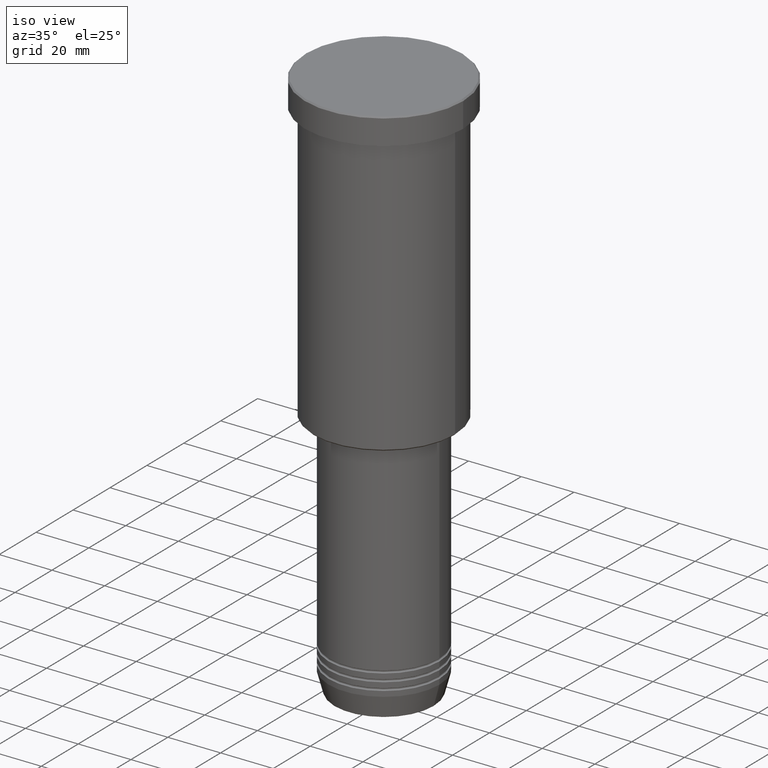
[diagram: clean part render]
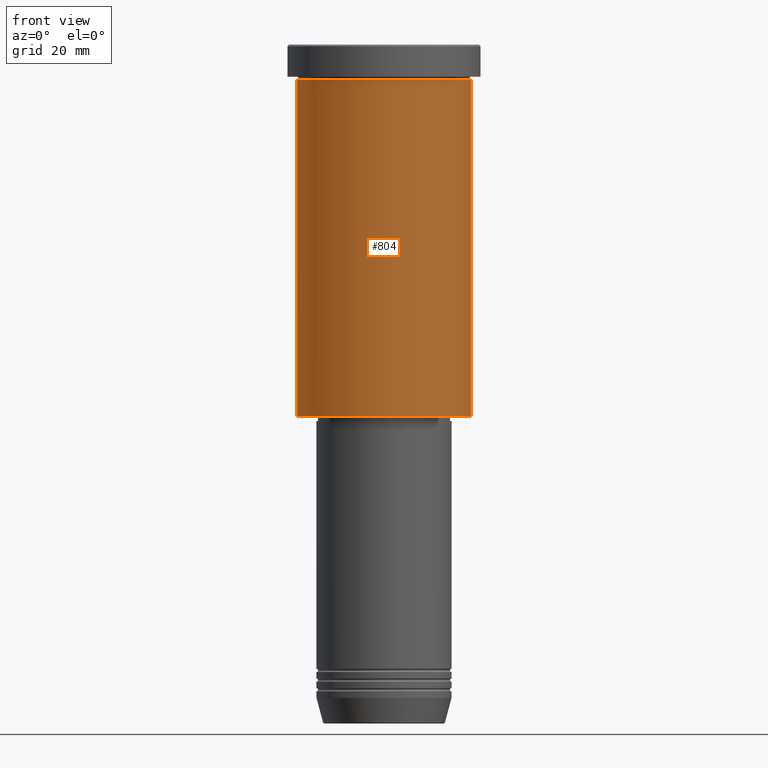
[diagram: tour spotlight — one face highlighted and labeled with its STEP entity id]
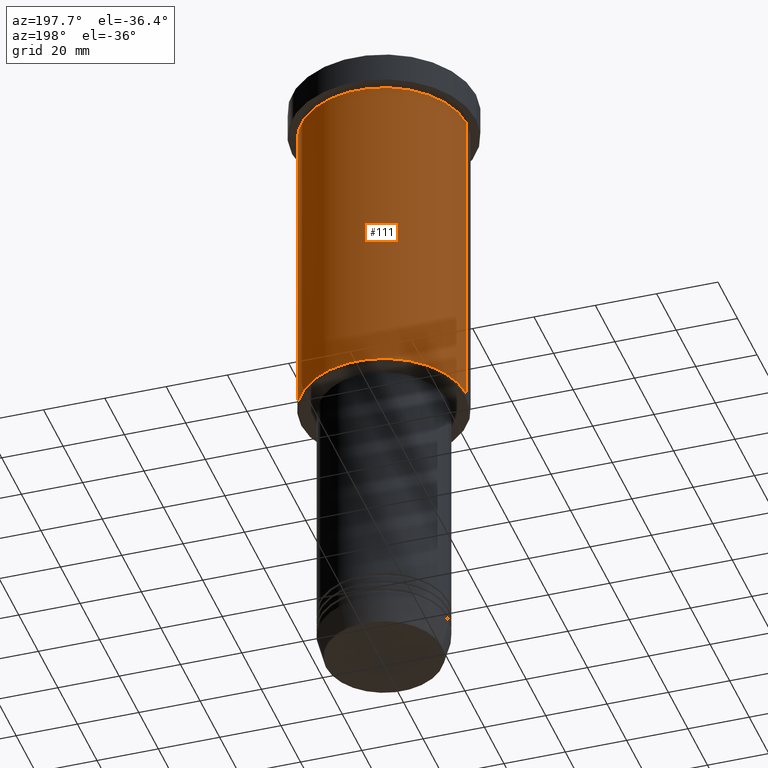
[diagram: tour spotlight — one face highlighted and labeled with its STEP entity id]
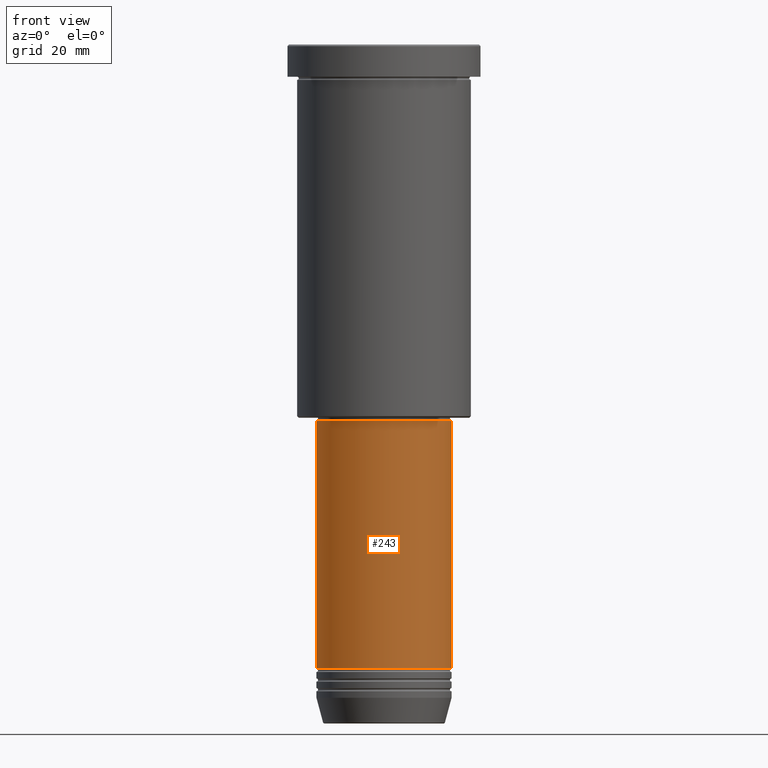
[diagram: tour spotlight — one face highlighted and labeled with its STEP entity id]
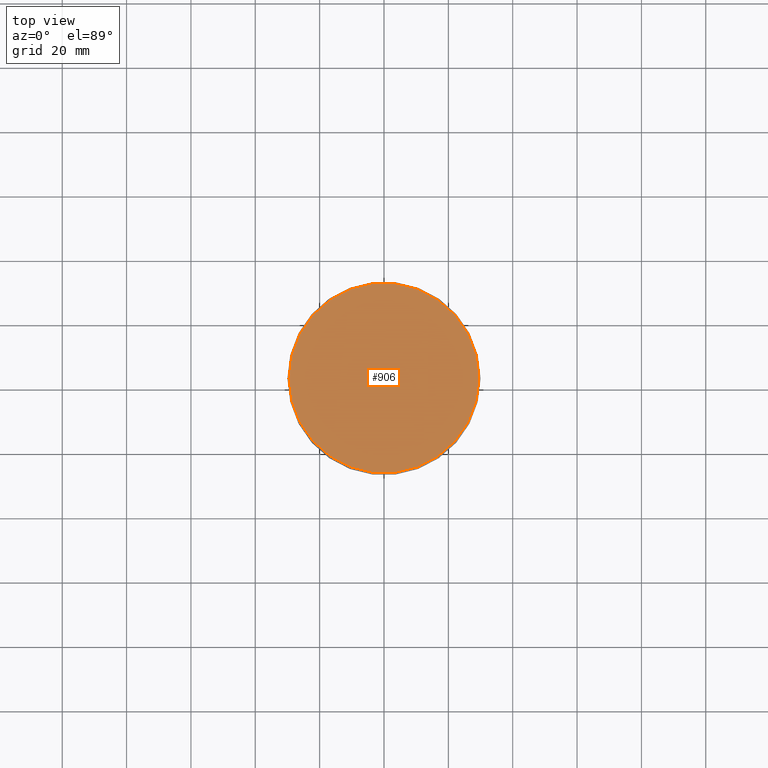
[diagram: tour spotlight — one face highlighted and labeled with its STEP entity id]
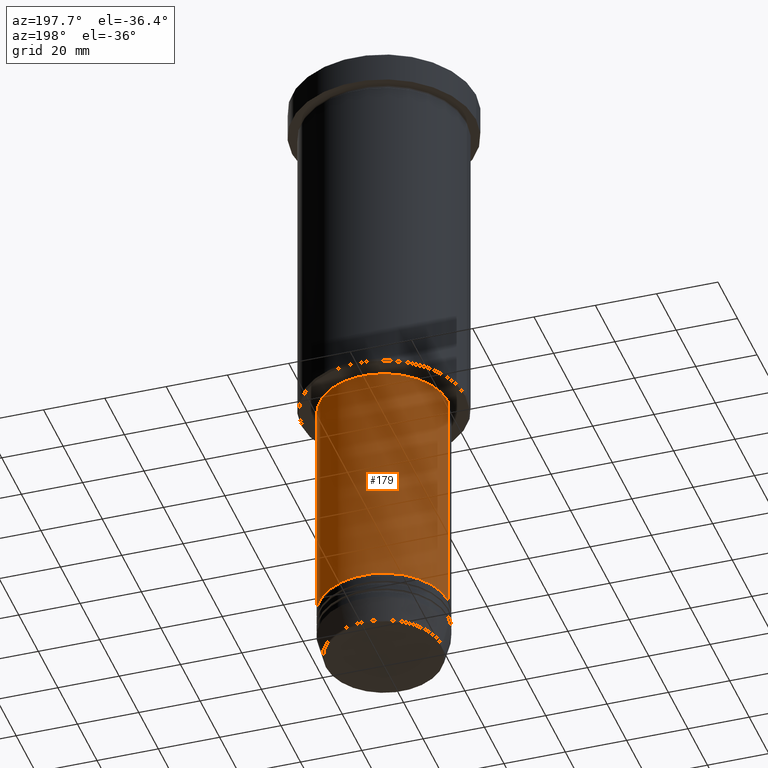
[diagram: tour spotlight — one face highlighted and labeled with its STEP entity id]
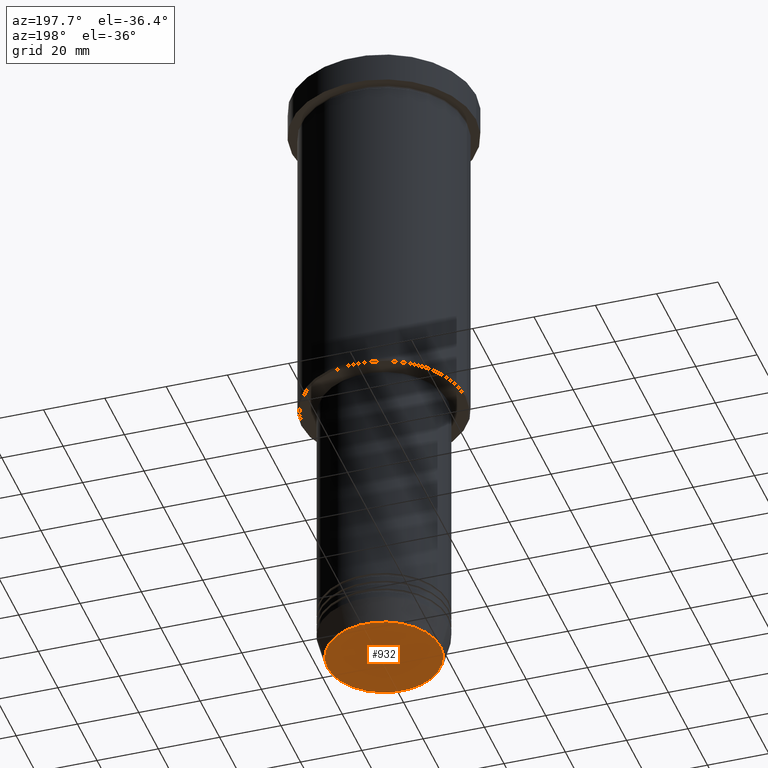
[diagram: tour spotlight — one face highlighted and labeled with its STEP entity id]
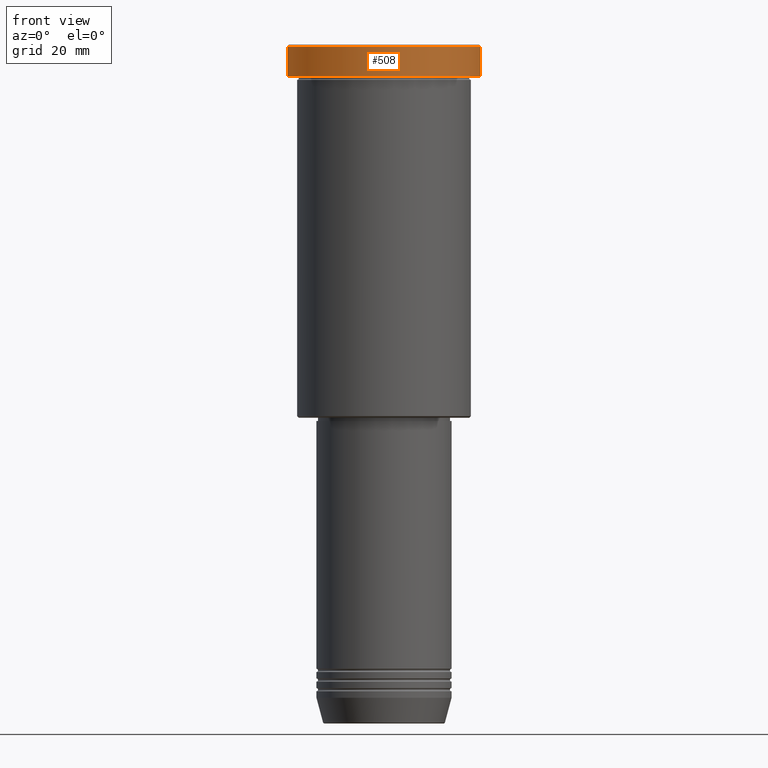
[diagram: tour spotlight — one face highlighted and labeled with its STEP entity id]
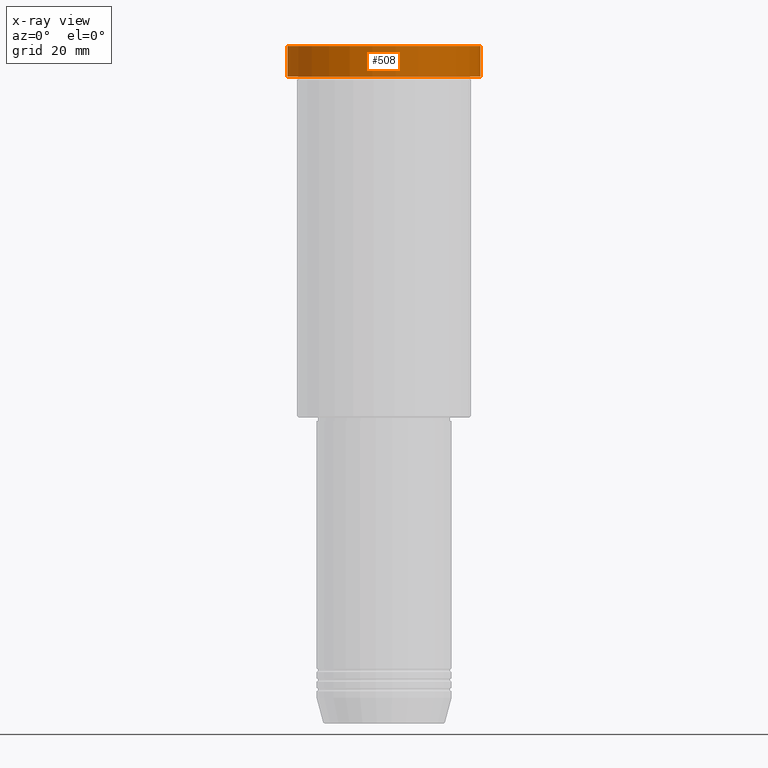
[diagram: x-ray of the same camera — body ghosted, this tour face saturated]
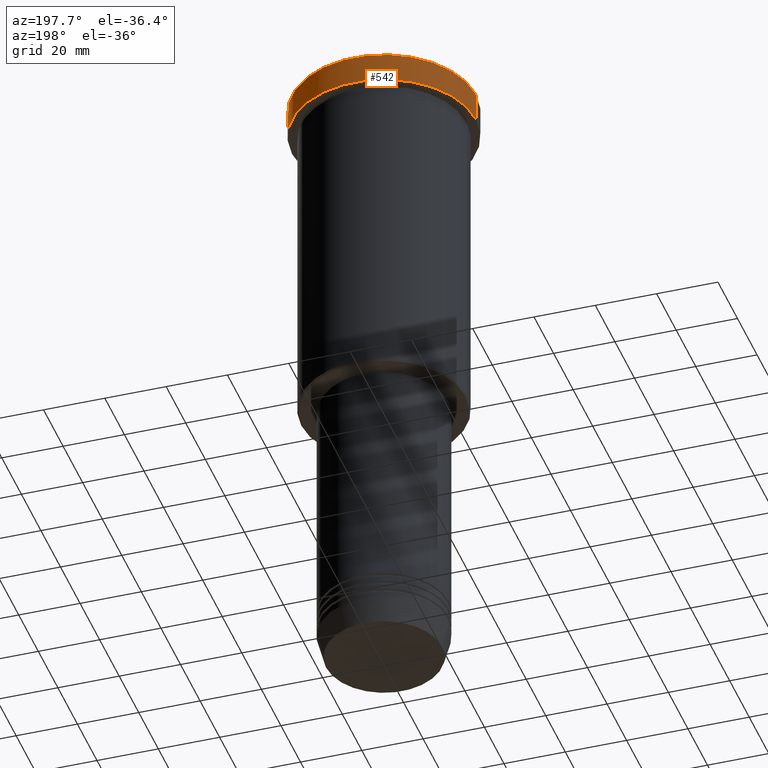
[diagram: tour spotlight — one face highlighted and labeled with its STEP entity id]
A machine part: a face-by-face anatomy tour. The part has 43 B-rep faces; the first image is the clean iso view, then the 8 largest visible faces are spotlighted one at a time (largest first), each with its STEP entity span.

Face 1 — front view, entity #804. In plain terms, the highlighted cylindrical surface (partial cylindrical patch) has radius 27 mm, axis along (-0, -0, 1).
Definition (entity closure, byte-faithful):
#3 = CIRCLE ( 'NONE', #815, 27.00000000000000355 ) ;
#48 = CARTESIAN_POINT ( 'NONE',  ( 27.00000000000000355, 0.000000000000000000, 0.000000000000000000 ) ) ;
#82 = DIRECTION ( 'NONE',  ( -0.000000000000000000, -0.000000000000000000, 1.000000000000000000 ) ) ;
#83 = AXIS2_PLACEMENT_3D ( 'NONE', #270, #82, #436 ) ;
#159 = ORIENTED_EDGE ( 'NONE', *, *, #1024, .T. ) ;
#170 = FACE_OUTER_BOUND ( 'NONE', #1068, .T. ) ;
#180 = DIRECTION ( 'NONE',  ( -0.000000000000000000, -0.000000000000000000, 1.000000000000000000 ) ) ;
#230 = EDGE_CURVE ( 'NONE', #1062, #689, #799, .T. ) ;
#270 = CARTESIAN_POINT ( 'NONE',  ( 0.000000000000000000, 0.000000000000000000, 0.000000000000000000 ) ) ;
#275 = CIRCLE ( 'NONE', #1174, 27.00000000000000355 ) ;
#291 = CARTESIAN_POINT ( 'NONE',  ( 0.000000000000000000, 0.000000000000000000, -115.4999999999999858 ) ) ;
#338 = CARTESIAN_POINT ( 'NONE',  ( 0.000000000000000000, 0.000000000000000000, -10.99999999999999289 ) ) ;
#342 = EDGE_CURVE ( 'NONE', #848, #689, #3, .T. ) ;
#367 = CARTESIAN_POINT ( 'NONE',  ( 27.00000000000000355, 0.000000000000000000, -10.99999999999999289 ) ) ;
#381 = CARTESIAN_POINT ( 'NONE',  ( -27.00000000000000355, 3.306546357697854128E-15, -10.99999999999999289 ) ) ;
#403 = DIRECTION ( 'NONE',  ( -0.000000000000000000, -0.000000000000000000, 1.000000000000000000 ) ) ;
#436 = DIRECTION ( 'NONE',  ( 1.000000000000000000, 0.000000000000000000, 0.000000000000000000 ) ) ;
#549 = ORIENTED_EDGE ( 'NONE', *, *, #1167, .F. ) ;
#638 = CARTESIAN_POINT ( 'NONE',  ( -27.00000000000000355, 3.306546357697854128E-15, -115.4999999999999858 ) ) ;
#680 = DIRECTION ( 'NONE',  ( -1.000000000000000000, 0.000000000000000000, 0.000000000000000000 ) ) ;
#689 = VERTEX_POINT ( 'NONE', #367 ) ;
#696 = VERTEX_POINT ( 'NONE', #638 ) ;
#780 = DIRECTION ( 'NONE',  ( -0.000000000000000000, -0.000000000000000000, 1.000000000000000000 ) ) ;
#799 = LINE ( 'NONE', #48, #835 ) ;
#804 = ADVANCED_FACE ( 'NONE', ( #170 ), #1085, .T. ) ;
#815 = AXIS2_PLACEMENT_3D ( 'NONE', #338, #180, #1094 ) ;
#835 = VECTOR ( 'NONE', #403, 1000.000000000000000 ) ;
#848 = VERTEX_POINT ( 'NONE', #381 ) ;
#853 = CARTESIAN_POINT ( 'NONE',  ( 27.00000000000000355, 0.000000000000000000, -115.4999999999999858 ) ) ;
#878 = CARTESIAN_POINT ( 'NONE',  ( -27.00000000000000355, 3.306546357697854128E-15, 0.000000000000000000 ) ) ;
#901 = LINE ( 'NONE', #878, #902 ) ;
#902 = VECTOR ( 'NONE', #961, 1000.000000000000000 ) ;
#929 = ORIENTED_EDGE ( 'NONE', *, *, #230, .T. ) ;
#961 = DIRECTION ( 'NONE',  ( -0.000000000000000000, -0.000000000000000000, 1.000000000000000000 ) ) ;
#1024 = EDGE_CURVE ( 'NONE', #696, #1062, #275, .T. ) ;
#1062 = VERTEX_POINT ( 'NONE', #853 ) ;
#1068 = EDGE_LOOP ( 'NONE', ( #549, #159, #929, #1148 ) ) ;
#1085 = CYLINDRICAL_SURFACE ( 'NONE', #83, 27.00000000000000355 ) ;
#1094 = DIRECTION ( 'NONE',  ( 1.000000000000000000, 0.000000000000000000, 0.000000000000000000 ) ) ;
#1148 = ORIENTED_EDGE ( 'NONE', *, *, #342, .F. ) ;
#1167 = EDGE_CURVE ( 'NONE', #696, #848, #901, .T. ) ;
#1174 = AXIS2_PLACEMENT_3D ( 'NONE', #291, #780, #680 ) ;

Face 2 — auxiliary view, entity #111. In plain terms, the highlighted cylindrical surface (partial cylindrical patch) has radius 27 mm, axis along (-0, -0, 1).
Definition (entity closure, byte-faithful):
#28 = ORIENTED_EDGE ( 'NONE', *, *, #824, .T. ) ;
#48 = CARTESIAN_POINT ( 'NONE',  ( 27.00000000000000355, 0.000000000000000000, 0.000000000000000000 ) ) ;
#88 = DIRECTION ( 'NONE',  ( 1.000000000000000000, 0.000000000000000000, 0.000000000000000000 ) ) ;
#111 = ADVANCED_FACE ( 'NONE', ( #386 ), #202, .T. ) ;
#117 = DIRECTION ( 'NONE',  ( -0.000000000000000000, -0.000000000000000000, 1.000000000000000000 ) ) ;
#167 = ORIENTED_EDGE ( 'NONE', *, *, #1167, .T. ) ;
#202 = CYLINDRICAL_SURFACE ( 'NONE', #223, 27.00000000000000355 ) ;
#223 = AXIS2_PLACEMENT_3D ( 'NONE', #928, #117, #1119 ) ;
#229 = AXIS2_PLACEMENT_3D ( 'NONE', #553, #920, #1175 ) ;
#230 = EDGE_CURVE ( 'NONE', #1062, #689, #799, .T. ) ;
#277 = EDGE_CURVE ( 'NONE', #689, #848, #305, .T. ) ;
#305 = CIRCLE ( 'NONE', #450, 27.00000000000000355 ) ;
#367 = CARTESIAN_POINT ( 'NONE',  ( 27.00000000000000355, 0.000000000000000000, -10.99999999999999289 ) ) ;
#381 = CARTESIAN_POINT ( 'NONE',  ( -27.00000000000000355, 3.306546357697854128E-15, -10.99999999999999289 ) ) ;
#386 = FACE_OUTER_BOUND ( 'NONE', #887, .T. ) ;
#403 = DIRECTION ( 'NONE',  ( -0.000000000000000000, -0.000000000000000000, 1.000000000000000000 ) ) ;
#450 = AXIS2_PLACEMENT_3D ( 'NONE', #1152, #536, #88 ) ;
#520 = ORIENTED_EDGE ( 'NONE', *, *, #230, .F. ) ;
#536 = DIRECTION ( 'NONE',  ( -0.000000000000000000, -0.000000000000000000, 1.000000000000000000 ) ) ;
#553 = CARTESIAN_POINT ( 'NONE',  ( 0.000000000000000000, 0.000000000000000000, -115.4999999999999858 ) ) ;
#588 = CIRCLE ( 'NONE', #229, 27.00000000000000355 ) ;
#638 = CARTESIAN_POINT ( 'NONE',  ( -27.00000000000000355, 3.306546357697854128E-15, -115.4999999999999858 ) ) ;
#689 = VERTEX_POINT ( 'NONE', #367 ) ;
#696 = VERTEX_POINT ( 'NONE', #638 ) ;
#799 = LINE ( 'NONE', #48, #835 ) ;
#824 = EDGE_CURVE ( 'NONE', #1062, #696, #588, .T. ) ;
#835 = VECTOR ( 'NONE', #403, 1000.000000000000000 ) ;
#848 = VERTEX_POINT ( 'NONE', #381 ) ;
#853 = CARTESIAN_POINT ( 'NONE',  ( 27.00000000000000355, 0.000000000000000000, -115.4999999999999858 ) ) ;
#878 = CARTESIAN_POINT ( 'NONE',  ( -27.00000000000000355, 3.306546357697854128E-15, 0.000000000000000000 ) ) ;
#887 = EDGE_LOOP ( 'NONE', ( #28, #167, #1173, #520 ) ) ;
#901 = LINE ( 'NONE', #878, #902 ) ;
#902 = VECTOR ( 'NONE', #961, 1000.000000000000000 ) ;
#920 = DIRECTION ( 'NONE',  ( -0.000000000000000000, -0.000000000000000000, 1.000000000000000000 ) ) ;
#928 = CARTESIAN_POINT ( 'NONE',  ( 0.000000000000000000, 0.000000000000000000, 0.000000000000000000 ) ) ;
#961 = DIRECTION ( 'NONE',  ( -0.000000000000000000, -0.000000000000000000, 1.000000000000000000 ) ) ;
#1062 = VERTEX_POINT ( 'NONE', #853 ) ;
#1119 = DIRECTION ( 'NONE',  ( 1.000000000000000000, 0.000000000000000000, 0.000000000000000000 ) ) ;
#1152 = CARTESIAN_POINT ( 'NONE',  ( 0.000000000000000000, 0.000000000000000000, -10.99999999999999289 ) ) ;
#1167 = EDGE_CURVE ( 'NONE', #696, #848, #901, .T. ) ;
#1173 = ORIENTED_EDGE ( 'NONE', *, *, #277, .F. ) ;
#1175 = DIRECTION ( 'NONE',  ( -1.000000000000000000, 0.000000000000000000, 0.000000000000000000 ) ) ;

Face 3 — front view, entity #243. In plain terms, the highlighted cylindrical surface (partial cylindrical patch) has radius 21 mm, axis along (-0, -0, 1).
Definition (entity closure, byte-faithful):
#4 = AXIS2_PLACEMENT_3D ( 'NONE', #96, #1073, #448 ) ;
#14 = EDGE_CURVE ( 'NONE', #587, #983, #319, .T. ) ;
#96 = CARTESIAN_POINT ( 'NONE',  ( 0.000000000000000000, 0.000000000000000000, -117.0000000000000142 ) ) ;
#101 = VERTEX_POINT ( 'NONE', #652 ) ;
#131 = VECTOR ( 'NONE', #732, 1000.000000000000000 ) ;
#162 = ORIENTED_EDGE ( 'NONE', *, *, #761, .F. ) ;
#169 = CARTESIAN_POINT ( 'NONE',  ( 21.00000000000000000, 0.000000000000000000, -193.9999999999999716 ) ) ;
#192 = EDGE_CURVE ( 'NONE', #877, #101, #602, .T. ) ;
#233 = DIRECTION ( 'NONE',  ( 1.000000000000000000, 0.000000000000000000, 0.000000000000000000 ) ) ;
#243 = ADVANCED_FACE ( 'NONE', ( #370 ), #681, .T. ) ;
#318 = CARTESIAN_POINT ( 'NONE',  ( -21.00000000000000000, 2.571758278209441661E-15, -117.0000000000000142 ) ) ;
#319 = LINE ( 'NONE', #514, #685 ) ;
#322 = CARTESIAN_POINT ( 'NONE',  ( 21.00000000000000000, 0.000000000000000000, 0.000000000000000000 ) ) ;
#328 = ORIENTED_EDGE ( 'NONE', *, *, #530, .T. ) ;
#370 = FACE_OUTER_BOUND ( 'NONE', #854, .T. ) ;
#398 = ORIENTED_EDGE ( 'NONE', *, *, #192, .T. ) ;
#419 = CIRCLE ( 'NONE', #690, 21.00000000000000000 ) ;
#448 = DIRECTION ( 'NONE',  ( 1.000000000000000000, 0.000000000000000000, 0.000000000000000000 ) ) ;
#451 = CIRCLE ( 'NONE', #4, 21.00000000000000000 ) ;
#476 = CARTESIAN_POINT ( 'NONE',  ( -21.00000000000000000, 2.571758278209441661E-15, -193.9999999999999716 ) ) ;
#514 = CARTESIAN_POINT ( 'NONE',  ( -21.00000000000000000, 2.571758278209441661E-15, 0.000000000000000000 ) ) ;
#530 = EDGE_CURVE ( 'NONE', #587, #877, #419, .T. ) ;
#587 = VERTEX_POINT ( 'NONE', #476 ) ;
#602 = LINE ( 'NONE', #322, #131 ) ;
#611 = AXIS2_PLACEMENT_3D ( 'NONE', #781, #1053, #233 ) ;
#652 = CARTESIAN_POINT ( 'NONE',  ( 21.00000000000000000, 0.000000000000000000, -117.0000000000000142 ) ) ;
#681 = CYLINDRICAL_SURFACE ( 'NONE', #611, 21.00000000000000000 ) ;
#682 = ORIENTED_EDGE ( 'NONE', *, *, #14, .F. ) ;
#685 = VECTOR ( 'NONE', #980, 1000.000000000000000 ) ;
#690 = AXIS2_PLACEMENT_3D ( 'NONE', #755, #1112, #861 ) ;
#732 = DIRECTION ( 'NONE',  ( -0.000000000000000000, -0.000000000000000000, 1.000000000000000000 ) ) ;
#755 = CARTESIAN_POINT ( 'NONE',  ( 0.000000000000000000, 0.000000000000000000, -193.9999999999999716 ) ) ;
#761 = EDGE_CURVE ( 'NONE', #983, #101, #451, .T. ) ;
#781 = CARTESIAN_POINT ( 'NONE',  ( 0.000000000000000000, 0.000000000000000000, 0.000000000000000000 ) ) ;
#854 = EDGE_LOOP ( 'NONE', ( #682, #328, #398, #162 ) ) ;
#861 = DIRECTION ( 'NONE',  ( 1.000000000000000000, 0.000000000000000000, 0.000000000000000000 ) ) ;
#877 = VERTEX_POINT ( 'NONE', #169 ) ;
#980 = DIRECTION ( 'NONE',  ( -0.000000000000000000, -0.000000000000000000, 1.000000000000000000 ) ) ;
#983 = VERTEX_POINT ( 'NONE', #318 ) ;
#1053 = DIRECTION ( 'NONE',  ( -0.000000000000000000, -0.000000000000000000, 1.000000000000000000 ) ) ;
#1073 = DIRECTION ( 'NONE',  ( -0.000000000000000000, -0.000000000000000000, 1.000000000000000000 ) ) ;
#1112 = DIRECTION ( 'NONE',  ( -0.000000000000000000, -0.000000000000000000, 1.000000000000000000 ) ) ;

Face 4 — top view, entity #906. In plain terms, the highlighted planar face has unit normal (0, -0, 1).
Definition (entity closure, byte-faithful):
#7 = ORIENTED_EDGE ( 'NONE', *, *, #510, .T. ) ;
#269 = FACE_OUTER_BOUND ( 'NONE', #1182, .T. ) ;
#292 = VERTEX_POINT ( 'NONE', #600 ) ;
#312 = DIRECTION ( 'NONE',  ( 0.000000000000000000, -0.000000000000000000, 1.000000000000000000 ) ) ;
#390 = DIRECTION ( 'NONE',  ( -0.000000000000000000, -0.000000000000000000, 1.000000000000000000 ) ) ;
#446 = CARTESIAN_POINT ( 'NONE',  ( 0.000000000000000000, 0.000000000000000000, 0.000000000000000000 ) ) ;
#477 = CARTESIAN_POINT ( 'NONE',  ( 0.000000000000000000, 0.000000000000000000, 0.000000000000000000 ) ) ;
#510 = EDGE_CURVE ( 'NONE', #292, #754, #933, .T. ) ;
#543 = CARTESIAN_POINT ( 'NONE',  ( -29.50000000000005329, 0.000000000000000000, 0.000000000000000000 ) ) ;
#568 = AXIS2_PLACEMENT_3D ( 'NONE', #582, #390, #778 ) ;
#582 = CARTESIAN_POINT ( 'NONE',  ( 0.000000000000000000, 0.000000000000000000, 0.000000000000000000 ) ) ;
#600 = CARTESIAN_POINT ( 'NONE',  ( 29.50000000000005329, 3.643324227463378546E-15, 0.000000000000000000 ) ) ;
#628 = PLANE ( 'NONE',  #1012 ) ;
#671 = DIRECTION ( 'NONE',  ( 1.000000000000000000, 0.000000000000000000, 0.000000000000000000 ) ) ;
#752 = CIRCLE ( 'NONE', #952, 29.50000000000005329 ) ;
#754 = VERTEX_POINT ( 'NONE', #543 ) ;
#759 = DIRECTION ( 'NONE',  ( 1.000000000000000000, 0.000000000000000000, 0.000000000000000000 ) ) ;
#778 = DIRECTION ( 'NONE',  ( 1.000000000000000000, 0.000000000000000000, 0.000000000000000000 ) ) ;
#810 = ORIENTED_EDGE ( 'NONE', *, *, #926, .T. ) ;
#860 = DIRECTION ( 'NONE',  ( -0.000000000000000000, -0.000000000000000000, 1.000000000000000000 ) ) ;
#906 = ADVANCED_FACE ( 'NONE', ( #269 ), #628, .T. ) ;
#926 = EDGE_CURVE ( 'NONE', #754, #292, #752, .T. ) ;
#933 = CIRCLE ( 'NONE', #568, 29.50000000000005329 ) ;
#952 = AXIS2_PLACEMENT_3D ( 'NONE', #477, #860, #671 ) ;
#1012 = AXIS2_PLACEMENT_3D ( 'NONE', #446, #312, #759 ) ;
#1182 = EDGE_LOOP ( 'NONE', ( #810, #7 ) ) ;

Face 5 — auxiliary view, entity #179. In plain terms, the highlighted cylindrical surface (partial cylindrical patch) has radius 21 mm, axis along (-0, -0, 1).
Definition (entity closure, byte-faithful):
#14 = EDGE_CURVE ( 'NONE', #587, #983, #319, .T. ) ;
#37 = DIRECTION ( 'NONE',  ( 1.000000000000000000, 0.000000000000000000, 0.000000000000000000 ) ) ;
#101 = VERTEX_POINT ( 'NONE', #652 ) ;
#131 = VECTOR ( 'NONE', #732, 1000.000000000000000 ) ;
#135 = FACE_OUTER_BOUND ( 'NONE', #416, .T. ) ;
#169 = CARTESIAN_POINT ( 'NONE',  ( 21.00000000000000000, 0.000000000000000000, -193.9999999999999716 ) ) ;
#176 = AXIS2_PLACEMENT_3D ( 'NONE', #663, #707, #1157 ) ;
#179 = ADVANCED_FACE ( 'NONE', ( #135 ), #785, .T. ) ;
#192 = EDGE_CURVE ( 'NONE', #877, #101, #602, .T. ) ;
#264 = ORIENTED_EDGE ( 'NONE', *, *, #192, .F. ) ;
#316 = DIRECTION ( 'NONE',  ( 1.000000000000000000, 0.000000000000000000, 0.000000000000000000 ) ) ;
#318 = CARTESIAN_POINT ( 'NONE',  ( -21.00000000000000000, 2.571758278209441661E-15, -117.0000000000000142 ) ) ;
#319 = LINE ( 'NONE', #514, #685 ) ;
#322 = CARTESIAN_POINT ( 'NONE',  ( 21.00000000000000000, 0.000000000000000000, 0.000000000000000000 ) ) ;
#341 = DIRECTION ( 'NONE',  ( -0.000000000000000000, -0.000000000000000000, 1.000000000000000000 ) ) ;
#355 = AXIS2_PLACEMENT_3D ( 'NONE', #1000, #341, #316 ) ;
#375 = EDGE_CURVE ( 'NONE', #101, #983, #382, .T. ) ;
#382 = CIRCLE ( 'NONE', #176, 21.00000000000000000 ) ;
#405 = DIRECTION ( 'NONE',  ( -0.000000000000000000, -0.000000000000000000, 1.000000000000000000 ) ) ;
#416 = EDGE_LOOP ( 'NONE', ( #526, #1139, #610, #264 ) ) ;
#476 = CARTESIAN_POINT ( 'NONE',  ( -21.00000000000000000, 2.571758278209441661E-15, -193.9999999999999716 ) ) ;
#514 = CARTESIAN_POINT ( 'NONE',  ( -21.00000000000000000, 2.571758278209441661E-15, 0.000000000000000000 ) ) ;
#526 = ORIENTED_EDGE ( 'NONE', *, *, #1079, .T. ) ;
#587 = VERTEX_POINT ( 'NONE', #476 ) ;
#602 = LINE ( 'NONE', #322, #131 ) ;
#610 = ORIENTED_EDGE ( 'NONE', *, *, #375, .F. ) ;
#616 = CIRCLE ( 'NONE', #740, 21.00000000000000000 ) ;
#652 = CARTESIAN_POINT ( 'NONE',  ( 21.00000000000000000, 0.000000000000000000, -117.0000000000000142 ) ) ;
#663 = CARTESIAN_POINT ( 'NONE',  ( 0.000000000000000000, 0.000000000000000000, -117.0000000000000142 ) ) ;
#685 = VECTOR ( 'NONE', #980, 1000.000000000000000 ) ;
#707 = DIRECTION ( 'NONE',  ( -0.000000000000000000, -0.000000000000000000, 1.000000000000000000 ) ) ;
#732 = DIRECTION ( 'NONE',  ( -0.000000000000000000, -0.000000000000000000, 1.000000000000000000 ) ) ;
#740 = AXIS2_PLACEMENT_3D ( 'NONE', #864, #405, #37 ) ;
#785 = CYLINDRICAL_SURFACE ( 'NONE', #355, 21.00000000000000000 ) ;
#864 = CARTESIAN_POINT ( 'NONE',  ( 0.000000000000000000, 0.000000000000000000, -193.9999999999999716 ) ) ;
#877 = VERTEX_POINT ( 'NONE', #169 ) ;
#980 = DIRECTION ( 'NONE',  ( -0.000000000000000000, -0.000000000000000000, 1.000000000000000000 ) ) ;
#983 = VERTEX_POINT ( 'NONE', #318 ) ;
#1000 = CARTESIAN_POINT ( 'NONE',  ( 0.000000000000000000, 0.000000000000000000, 0.000000000000000000 ) ) ;
#1079 = EDGE_CURVE ( 'NONE', #877, #587, #616, .T. ) ;
#1139 = ORIENTED_EDGE ( 'NONE', *, *, #14, .T. ) ;
#1157 = DIRECTION ( 'NONE',  ( 1.000000000000000000, 0.000000000000000000, 0.000000000000000000 ) ) ;

Face 6 — auxiliary view, entity #932. In plain terms, the highlighted planar face has unit normal (0, -0, 1).
Definition (entity closure, byte-faithful):
#15 = DIRECTION ( 'NONE',  ( 0.000000000000000000, 0.000000000000000000, -1.000000000000000000 ) ) ;
#112 = CARTESIAN_POINT ( 'NONE',  ( 0.000000000000000000, 0.000000000000000000, -211.0000000000000284 ) ) ;
#130 = DIRECTION ( 'NONE',  ( 0.000000000000000000, -0.000000000000000000, 1.000000000000000000 ) ) ;
#164 = CARTESIAN_POINT ( 'NONE',  ( 18.47274296656153680, 0.000000000000000000, -211.0000000000000284 ) ) ;
#171 = DIRECTION ( 'NONE',  ( 1.000000000000000000, 0.000000000000000000, 0.000000000000000000 ) ) ;
#266 = CARTESIAN_POINT ( 'NONE',  ( 0.000000000000000000, 0.000000000000000000, -211.0000000000000284 ) ) ;
#267 = ORIENTED_EDGE ( 'NONE', *, *, #825, .T. ) ;
#308 = CIRCLE ( 'NONE', #951, 18.47274296656153680 ) ;
#371 = EDGE_LOOP ( 'NONE', ( #1023, #267 ) ) ;
#374 = DIRECTION ( 'NONE',  ( 0.000000000000000000, 0.000000000000000000, -1.000000000000000000 ) ) ;
#462 = VERTEX_POINT ( 'NONE', #777 ) ;
#471 = AXIS2_PLACEMENT_3D ( 'NONE', #112, #130, #579 ) ;
#483 = FACE_OUTER_BOUND ( 'NONE', #371, .T. ) ;
#535 = AXIS2_PLACEMENT_3D ( 'NONE', #845, #15, #779 ) ;
#562 = PLANE ( 'NONE',  #471 ) ;
#579 = DIRECTION ( 'NONE',  ( 1.000000000000000000, 0.000000000000000000, 0.000000000000000000 ) ) ;
#709 = EDGE_CURVE ( 'NONE', #893, #462, #308, .T. ) ;
#777 = CARTESIAN_POINT ( 'NONE',  ( -18.47274296656153680, 2.291831503831603257E-15, -211.0000000000000284 ) ) ;
#779 = DIRECTION ( 'NONE',  ( 1.000000000000000000, 0.000000000000000000, 0.000000000000000000 ) ) ;
#825 = EDGE_CURVE ( 'NONE', #462, #893, #904, .T. ) ;
#845 = CARTESIAN_POINT ( 'NONE',  ( 0.000000000000000000, 0.000000000000000000, -211.0000000000000284 ) ) ;
#893 = VERTEX_POINT ( 'NONE', #164 ) ;
#904 = CIRCLE ( 'NONE', #535, 18.47274296656153680 ) ;
#932 = ADVANCED_FACE ( 'NONE', ( #483 ), #562, .F. ) ;
#951 = AXIS2_PLACEMENT_3D ( 'NONE', #266, #374, #171 ) ;
#1023 = ORIENTED_EDGE ( 'NONE', *, *, #709, .T. ) ;

Face 7 — front view, entity #508. An x-ray twin of the same camera follows (body ghosted, this face saturated) — the face is partly hidden behind the body. In plain terms, the highlighted cylindrical surface (partial cylindrical patch) has radius 30 mm, axis along (-0, -0, 1).
Definition (entity closure, byte-faithful):
#44 = CARTESIAN_POINT ( 'NONE',  ( 0.000000000000000000, 0.000000000000000000, 0.000000000000000000 ) ) ;
#49 = DIRECTION ( 'NONE',  ( 1.000000000000000000, 0.000000000000000000, 0.000000000000000000 ) ) ;
#59 = CARTESIAN_POINT ( 'NONE',  ( 30.00000000000000000, 0.000000000000000000, -9.999999999999992895 ) ) ;
#67 = EDGE_CURVE ( 'NONE', #891, #648, #992, .T. ) ;
#138 = CYLINDRICAL_SURFACE ( 'NONE', #417, 30.00000000000000000 ) ;
#218 = FACE_OUTER_BOUND ( 'NONE', #512, .T. ) ;
#257 = VERTEX_POINT ( 'NONE', #59 ) ;
#353 = ORIENTED_EDGE ( 'NONE', *, *, #618, .F. ) ;
#401 = EDGE_CURVE ( 'NONE', #257, #891, #1057, .T. ) ;
#409 = CARTESIAN_POINT ( 'NONE',  ( 30.00000000000000000, 0.000000000000000000, -0.4999999999999518718 ) ) ;
#417 = AXIS2_PLACEMENT_3D ( 'NONE', #44, #1025, #863 ) ;
#456 = DIRECTION ( 'NONE',  ( -0.000000000000000000, -0.000000000000000000, 1.000000000000000000 ) ) ;
#461 = LINE ( 'NONE', #746, #837 ) ;
#464 = ORIENTED_EDGE ( 'NONE', *, *, #401, .T. ) ;
#465 = EDGE_CURVE ( 'NONE', #1080, #257, #976, .T. ) ;
#508 = ADVANCED_FACE ( 'NONE', ( #218 ), #138, .T. ) ;
#512 = EDGE_LOOP ( 'NONE', ( #353, #1086, #464, #786 ) ) ;
#513 = CARTESIAN_POINT ( 'NONE',  ( 0.000000000000000000, 0.000000000000000000, -9.999999999999992895 ) ) ;
#547 = DIRECTION ( 'NONE',  ( 1.000000000000000000, 0.000000000000000000, 0.000000000000000000 ) ) ;
#585 = AXIS2_PLACEMENT_3D ( 'NONE', #513, #871, #49 ) ;
#618 = EDGE_CURVE ( 'NONE', #1080, #648, #461, .T. ) ;
#639 = DIRECTION ( 'NONE',  ( 0.000000000000000000, 0.000000000000000000, -1.000000000000000000 ) ) ;
#648 = VERTEX_POINT ( 'NONE', #922 ) ;
#694 = CARTESIAN_POINT ( 'NONE',  ( 30.00000000000000000, 0.000000000000000000, 0.000000000000000000 ) ) ;
#700 = DIRECTION ( 'NONE',  ( -0.000000000000000000, -0.000000000000000000, 1.000000000000000000 ) ) ;
#737 = AXIS2_PLACEMENT_3D ( 'NONE', #913, #639, #547 ) ;
#746 = CARTESIAN_POINT ( 'NONE',  ( -30.00000000000000000, 3.673940397442059178E-15, 0.000000000000000000 ) ) ;
#786 = ORIENTED_EDGE ( 'NONE', *, *, #67, .T. ) ;
#837 = VECTOR ( 'NONE', #456, 1000.000000000000000 ) ;
#863 = DIRECTION ( 'NONE',  ( 1.000000000000000000, 0.000000000000000000, 0.000000000000000000 ) ) ;
#871 = DIRECTION ( 'NONE',  ( -0.000000000000000000, -0.000000000000000000, 1.000000000000000000 ) ) ;
#891 = VERTEX_POINT ( 'NONE', #409 ) ;
#913 = CARTESIAN_POINT ( 'NONE',  ( 0.000000000000000000, 0.000000000000000000, -0.4999999999999518718 ) ) ;
#922 = CARTESIAN_POINT ( 'NONE',  ( -30.00000000000000000, 3.673940397442059178E-15, -0.4999999999999518718 ) ) ;
#976 = CIRCLE ( 'NONE', #585, 30.00000000000000000 ) ;
#992 = CIRCLE ( 'NONE', #737, 30.00000000000000000 ) ;
#1010 = VECTOR ( 'NONE', #700, 1000.000000000000000 ) ;
#1025 = DIRECTION ( 'NONE',  ( -0.000000000000000000, -0.000000000000000000, 1.000000000000000000 ) ) ;
#1043 = CARTESIAN_POINT ( 'NONE',  ( -30.00000000000000000, 3.673940397442059178E-15, -9.999999999999992895 ) ) ;
#1057 = LINE ( 'NONE', #694, #1010 ) ;
#1080 = VERTEX_POINT ( 'NONE', #1043 ) ;
#1086 = ORIENTED_EDGE ( 'NONE', *, *, #465, .T. ) ;

Face 8 — auxiliary view, entity #542. In plain terms, the highlighted cylindrical surface (partial cylindrical patch) has radius 30 mm, axis along (-0, -0, 1).
Definition (entity closure, byte-faithful):
#13 = CARTESIAN_POINT ( 'NONE',  ( 0.000000000000000000, 0.000000000000000000, 0.000000000000000000 ) ) ;
#39 = FACE_OUTER_BOUND ( 'NONE', #1075, .T. ) ;
#59 = CARTESIAN_POINT ( 'NONE',  ( 30.00000000000000000, 0.000000000000000000, -9.999999999999992895 ) ) ;
#78 = ORIENTED_EDGE ( 'NONE', *, *, #998, .T. ) ;
#194 = CIRCLE ( 'NONE', #495, 30.00000000000000000 ) ;
#201 = ORIENTED_EDGE ( 'NONE', *, *, #618, .T. ) ;
#257 = VERTEX_POINT ( 'NONE', #59 ) ;
#293 = EDGE_CURVE ( 'NONE', #257, #1080, #850, .T. ) ;
#349 = DIRECTION ( 'NONE',  ( 1.000000000000000000, 0.000000000000000000, 0.000000000000000000 ) ) ;
#401 = EDGE_CURVE ( 'NONE', #257, #891, #1057, .T. ) ;
#409 = CARTESIAN_POINT ( 'NONE',  ( 30.00000000000000000, 0.000000000000000000, -0.4999999999999518718 ) ) ;
#456 = DIRECTION ( 'NONE',  ( -0.000000000000000000, -0.000000000000000000, 1.000000000000000000 ) ) ;
#461 = LINE ( 'NONE', #746, #837 ) ;
#475 = ORIENTED_EDGE ( 'NONE', *, *, #293, .T. ) ;
#495 = AXIS2_PLACEMENT_3D ( 'NONE', #1131, #757, #667 ) ;
#498 = CARTESIAN_POINT ( 'NONE',  ( 0.000000000000000000, 0.000000000000000000, -9.999999999999992895 ) ) ;
#542 = ADVANCED_FACE ( 'NONE', ( #39 ), #1008, .T. ) ;
#559 = DIRECTION ( 'NONE',  ( -0.000000000000000000, -0.000000000000000000, 1.000000000000000000 ) ) ;
#576 = ORIENTED_EDGE ( 'NONE', *, *, #401, .F. ) ;
#618 = EDGE_CURVE ( 'NONE', #1080, #648, #461, .T. ) ;
#648 = VERTEX_POINT ( 'NONE', #922 ) ;
#667 = DIRECTION ( 'NONE',  ( 1.000000000000000000, 0.000000000000000000, 0.000000000000000000 ) ) ;
#694 = CARTESIAN_POINT ( 'NONE',  ( 30.00000000000000000, 0.000000000000000000, 0.000000000000000000 ) ) ;
#700 = DIRECTION ( 'NONE',  ( -0.000000000000000000, -0.000000000000000000, 1.000000000000000000 ) ) ;
#746 = CARTESIAN_POINT ( 'NONE',  ( -30.00000000000000000, 3.673940397442059178E-15, 0.000000000000000000 ) ) ;
#757 = DIRECTION ( 'NONE',  ( 0.000000000000000000, 0.000000000000000000, -1.000000000000000000 ) ) ;
#837 = VECTOR ( 'NONE', #456, 1000.000000000000000 ) ;
#850 = CIRCLE ( 'NONE', #949, 30.00000000000000000 ) ;
#891 = VERTEX_POINT ( 'NONE', #409 ) ;
#922 = CARTESIAN_POINT ( 'NONE',  ( -30.00000000000000000, 3.673940397442059178E-15, -0.4999999999999518718 ) ) ;
#949 = AXIS2_PLACEMENT_3D ( 'NONE', #498, #1149, #349 ) ;
#998 = EDGE_CURVE ( 'NONE', #648, #891, #194, .T. ) ;
#1008 = CYLINDRICAL_SURFACE ( 'NONE', #1011, 30.00000000000000000 ) ;
#1010 = VECTOR ( 'NONE', #700, 1000.000000000000000 ) ;
#1011 = AXIS2_PLACEMENT_3D ( 'NONE', #13, #559, #1102 ) ;
#1043 = CARTESIAN_POINT ( 'NONE',  ( -30.00000000000000000, 3.673940397442059178E-15, -9.999999999999992895 ) ) ;
#1057 = LINE ( 'NONE', #694, #1010 ) ;
#1075 = EDGE_LOOP ( 'NONE', ( #475, #201, #78, #576 ) ) ;
#1080 = VERTEX_POINT ( 'NONE', #1043 ) ;
#1102 = DIRECTION ( 'NONE',  ( 1.000000000000000000, 0.000000000000000000, 0.000000000000000000 ) ) ;
#1131 = CARTESIAN_POINT ( 'NONE',  ( 0.000000000000000000, 0.000000000000000000, -0.4999999999999518718 ) ) ;
#1149 = DIRECTION ( 'NONE',  ( -0.000000000000000000, -0.000000000000000000, 1.000000000000000000 ) ) ;